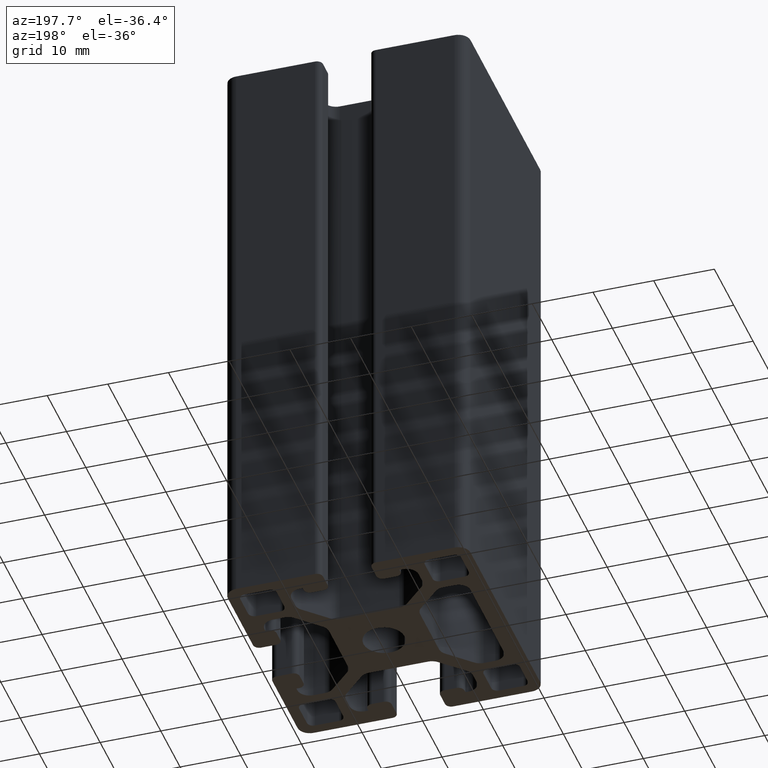
[diagram: clean part render]
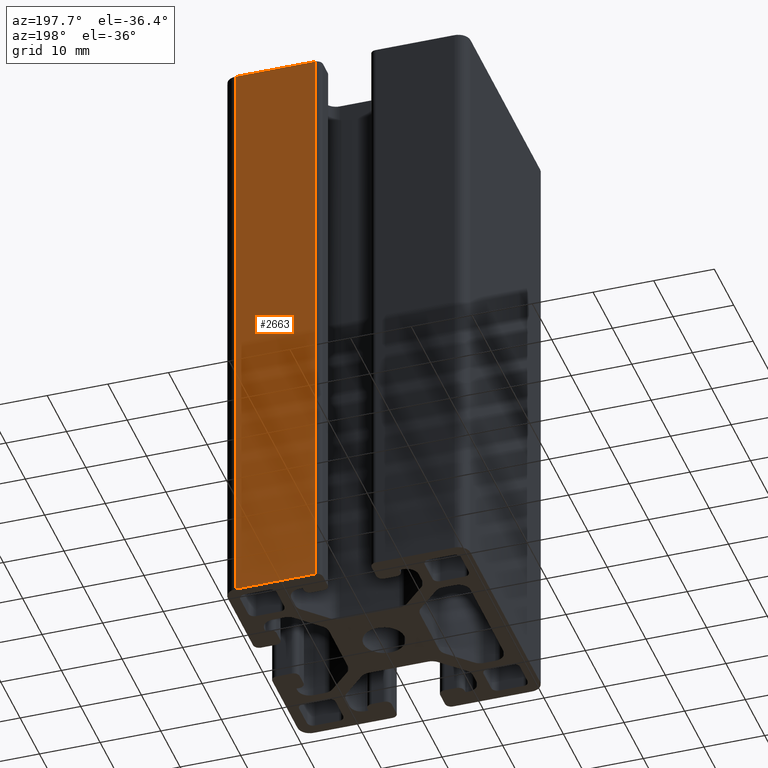
[diagram: same view with one face highlighted and labeled with its STEP entity id]
A machine part, auxiliary view. The second image highlights one B-rep face of the part: STEP entity #2663.
In plain terms, the highlighted planar face has unit normal (0, 1, 0).
Its self-contained STEP definition (entity closure, byte-faithful):
#174=LINE('',#4194,#440);
#269=LINE('',#4470,#535);
#275=LINE('',#4489,#541);
#276=LINE('',#4490,#542);
#440=VECTOR('',#3403,100.);
#535=VECTOR('',#3674,13.0000019959488);
#541=VECTOR('',#3696,13.0000019959488);
#542=VECTOR('',#3697,100.);
#613=PLANE('',#2922);
#757=FACE_OUTER_BOUND('',#897,.T.);
#897=EDGE_LOOP('',(#2322,#2323,#2324,#2325));
#1195=VERTEX_POINT('',#4191);
#1196=VERTEX_POINT('',#4193);
#1289=VERTEX_POINT('',#4469);
#1294=VERTEX_POINT('',#4488);
#1533=EDGE_CURVE('',#1195,#1196,#174,.T.);
#1671=EDGE_CURVE('',#1196,#1289,#269,.T.);
#1681=EDGE_CURVE('',#1195,#1294,#275,.T.);
#1682=EDGE_CURVE('',#1289,#1294,#276,.T.);
#2322=ORIENTED_EDGE('',*,*,#1533,.F.);
#2323=ORIENTED_EDGE('',*,*,#1681,.T.);
#2324=ORIENTED_EDGE('',*,*,#1682,.F.);
#2325=ORIENTED_EDGE('',*,*,#1671,.F.);
#2663=ADVANCED_FACE('',(#757),#613,.T.);
#2922=AXIS2_PLACEMENT_3D('',#4487,#3694,#3695);
#3403=DIRECTION('',(0.,0.,-1.));
#3674=DIRECTION('',(1.,0.,0.));
#3694=DIRECTION('center_axis',(0.,1.,0.));
#3695=DIRECTION('ref_axis',(-1.,0.,0.));
#3696=DIRECTION('',(1.,0.,0.));
#3697=DIRECTION('',(0.,0.,1.));
#4191=CARTESIAN_POINT('',(4.99999800405117,20.,100.));
#4193=CARTESIAN_POINT('',(4.99999800405117,20.,0.));
#4194=CARTESIAN_POINT('',(4.99999800405116,20.,0.));
#4469=CARTESIAN_POINT('',(18.,20.,0.));
#4470=CARTESIAN_POINT('',(9.,20.,0.));
#4487=CARTESIAN_POINT('Origin',(18.,20.,0.));
#4488=CARTESIAN_POINT('',(18.,20.,100.));
#4489=CARTESIAN_POINT('',(9.,20.,100.));
#4490=CARTESIAN_POINT('',(18.,20.,0.));